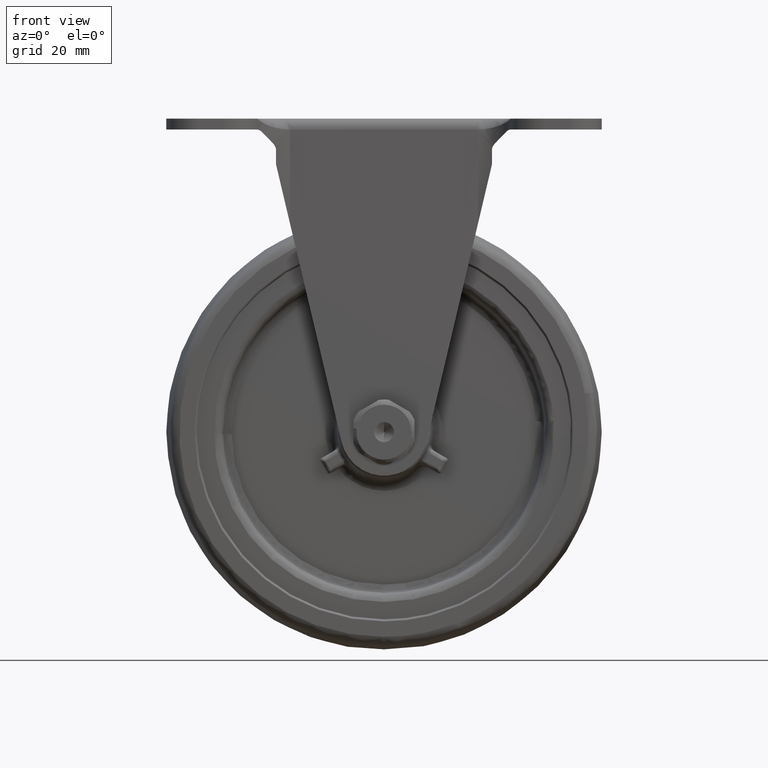
[diagram: clean part render]
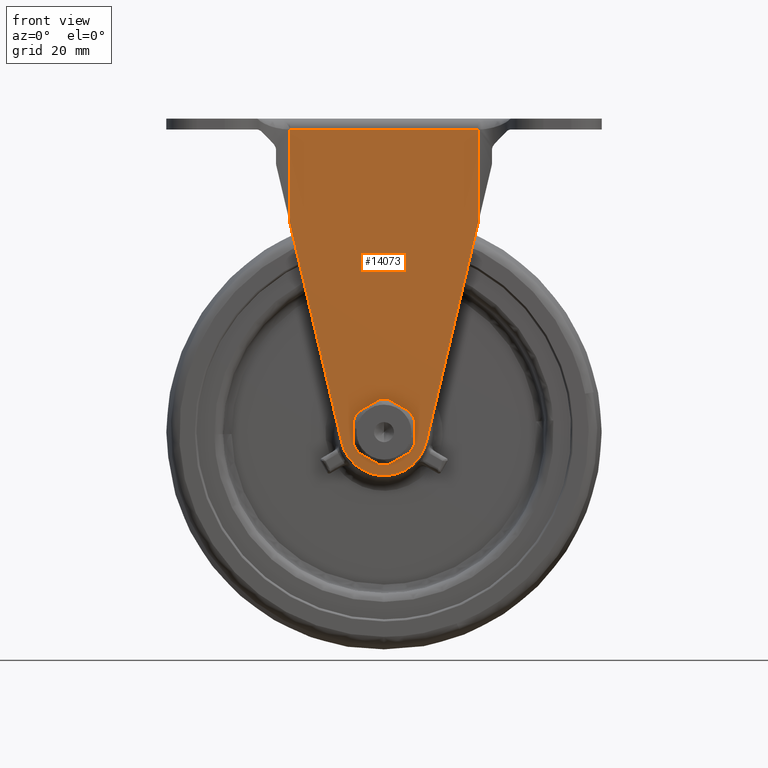
[diagram: same view with one face highlighted and labeled with its STEP entity id]
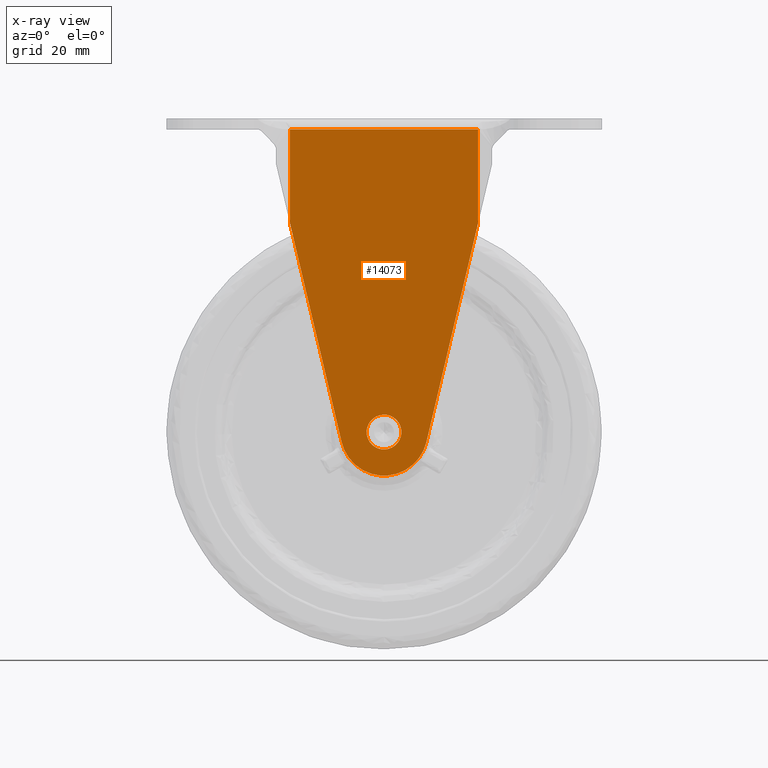
[diagram: x-ray of the same camera — body ghosted, the highlighted face saturated]
A machine part, front view. The second image highlights one B-rep face of the part: STEP entity #14073.
The next image is the same camera in x-ray: the body ghosted, the highlighted face saturated — about 0% of this face is hidden behind the body in this view.
In plain terms, the highlighted face is a freeform B-spline surface patch.
Its self-contained STEP definition (entity closure, byte-faithful):
#10452=CARTESIAN_POINT('',(3.972038105373621,-18.499980000000001,-0.472136939307879));
#10453=VERTEX_POINT('',#10452);
#10459=CARTESIAN_POINT('',(0.0,-18.499980000000001,3.999999999999885));
#10460=VERTEX_POINT('',#10459);
#10461=CARTESIAN_POINT('',(3.972038105373621,-18.499980000000004,-0.472136939307879));
#10462=CARTESIAN_POINT('',(3.999999999999884,-18.499979999999997,-0.236896479295690));
#10463=CARTESIAN_POINT('',(3.999999999999885,-18.499980000000001,0.0));
#10464=CARTESIAN_POINT('',(3.999999999999885,-18.499980000000004,3.999999999999885));
#10465=CARTESIAN_POINT('',(0.0,-18.499980000000001,3.999999999999885));
#10473=(BOUNDED_CURVE()B_SPLINE_CURVE(2,(#10461,#10462,#10463,#10464,#10465),.UNSPECIFIED.,.F.,.U.)B_SPLINE_CURVE_WITH_KNOTS((3,2,3),(0.229562473457706,0.250000000000000,0.500000000000000),.UNSPECIFIED.)CURVE()GEOMETRIC_REPRESENTATION_ITEM()RATIONAL_B_SPLINE_CURVE((0.956026754074324,0.976055948265768,1.0,0.707106781186548,1.0))REPRESENTATION_ITEM(''));
#10474=EDGE_CURVE('',#10453,#10460,#10473,.T.);
#10476=CARTESIAN_POINT('',(-3.992539193624949,-18.499980000000001,0.244194159159695));
#10477=VERTEX_POINT('',#10476);
#10478=CARTESIAN_POINT('',(0.0,-18.499980000000001,3.999999999999885));
#10479=CARTESIAN_POINT('',(-3.762824265695950,-18.499980000000008,3.999999999999885));
#10480=CARTESIAN_POINT('',(-3.992539193624950,-18.499980000000004,0.244194159159695));
#10488=(BOUNDED_CURVE()B_SPLINE_CURVE(2,(#10478,#10479,#10480),.UNSPECIFIED.,.F.,.U.)B_SPLINE_CURVE_WITH_KNOTS((3,3),(0.500000000000000,0.739332962153782),.UNSPECIFIED.)CURVE()GEOMETRIC_REPRESENTATION_ITEM()RATIONAL_B_SPLINE_CURVE((1.0,0.719603993386482,0.976072041484202))REPRESENTATION_ITEM(''));
#10489=EDGE_CURVE('',#10460,#10477,#10488,.T.);
#10563=CARTESIAN_POINT('',(0.0,-18.499980000000001,-3.999999999999885));
#10564=VERTEX_POINT('',#10563);
#10565=CARTESIAN_POINT('',(-3.992539193624949,-18.499980000000004,0.244194159159695));
#10566=CARTESIAN_POINT('',(-3.999999999999885,-18.499979999999994,0.122211054217487));
#10567=CARTESIAN_POINT('',(-3.999999999999885,-18.499980000000001,0.0));
#10568=CARTESIAN_POINT('',(-3.999999999999885,-18.499980000000004,-3.999999999999885));
#10569=CARTESIAN_POINT('',(0.0,-18.499980000000001,-3.999999999999885));
#10577=(BOUNDED_CURVE()B_SPLINE_CURVE(2,(#10565,#10566,#10567,#10568,#10569),.UNSPECIFIED.,.F.,.U.)B_SPLINE_CURVE_WITH_KNOTS((3,2,3),(0.739332962153781,0.750000000000000,1.0),.UNSPECIFIED.)CURVE()GEOMETRIC_REPRESENTATION_ITEM()RATIONAL_B_SPLINE_CURVE((0.976072041484200,0.987502787800064,1.0,0.707106781186548,1.0))REPRESENTATION_ITEM(''));
#10578=EDGE_CURVE('',#10477,#10564,#10577,.T.);
#10580=CARTESIAN_POINT('',(0.0,-18.499980000000001,-3.999999999999885));
#10581=CARTESIAN_POINT('',(3.552698102578839,-18.499979999999997,-3.999999999999884));
#10582=CARTESIAN_POINT('',(3.972038105373621,-18.499980000000004,-0.472136939307879));
#10590=(BOUNDED_CURVE()B_SPLINE_CURVE(2,(#10580,#10581,#10582),.UNSPECIFIED.,.F.,.U.)B_SPLINE_CURVE_WITH_KNOTS((3,3),(0.0,0.229562473457706),.UNSPECIFIED.)CURVE()GEOMETRIC_REPRESENTATION_ITEM()RATIONAL_B_SPLINE_CURVE((1.0,0.731050832920779,0.956026754074324))REPRESENTATION_ITEM(''));
#10591=EDGE_CURVE('',#10564,#10453,#10590,.T.);
#12121=CARTESIAN_POINT('',(-21.590020418879149,-18.499980000000001,69.500000000000000));
#12122=VERTEX_POINT('',#12121);
#12195=CARTESIAN_POINT('',(21.590029581120952,-18.499980000000001,69.500000000000000));
#12196=VERTEX_POINT('',#12195);
#12218=CARTESIAN_POINT('',(21.590029581120952,-18.499980000000001,69.500000000000000));
#12219=CARTESIAN_POINT('',(-21.590020418879149,-18.499980000000001,69.500000000000000));
#12220=QUASI_UNIFORM_CURVE('',1,(#12218,#12219),.UNSPECIFIED.,.F.,.U.);
#12221=EDGE_CURVE('',#12196,#12122,#12220,.T.);
#12932=CARTESIAN_POINT('',(9.732252464196970,-18.499980000000001,-2.298527566315305));
#12933=VERTEX_POINT('',#12932);
#12939=CARTESIAN_POINT('',(-9.732252464196970,-18.499980000000001,-2.298527566315295));
#12940=VERTEX_POINT('',#12939);
#12941=CARTESIAN_POINT('',(-9.732252464196971,-18.499980000000001,-2.298527566315294));
#12942=CARTESIAN_POINT('',(-7.913343065765032,-18.499979999999997,-9.999992821498067));
#12943=CARTESIAN_POINT('',(0.0,-18.499980000000001,-9.999992821498069));
#12944=CARTESIAN_POINT('',(7.913343065765020,-18.499979999999997,-9.999992821498067));
#12945=CARTESIAN_POINT('',(9.732252464196968,-18.499980000000001,-2.298527566315308));
#12953=(BOUNDED_CURVE()B_SPLINE_CURVE(2,(#12941,#12942,#12943,#12944,#12945),.UNSPECIFIED.,.F.,.U.)B_SPLINE_CURVE_WITH_KNOTS((3,2,3),(0.0,0.500000000000000,1.0),.UNSPECIFIED.)CURVE()GEOMETRIC_REPRESENTATION_ITEM()RATIONAL_B_SPLINE_CURVE((1.0,0.784172645047544,1.0,0.784172645047544,1.0))REPRESENTATION_ITEM(''));
#12954=EDGE_CURVE('',#12940,#12933,#12953,.T.);
#12969=CARTESIAN_POINT('',(-21.590020418879149,-18.499980000000001,47.908584445823003));
#12970=VERTEX_POINT('',#12969);
#12988=CARTESIAN_POINT('',(-21.590020418879149,-18.499980000000001,47.908584445823003));
#12989=CARTESIAN_POINT('',(-9.732252464196970,-18.499980000000001,-2.298527566315295));
#12990=QUASI_UNIFORM_CURVE('',1,(#12988,#12989),.UNSPECIFIED.,.F.,.U.);
#12991=EDGE_CURVE('',#12970,#12940,#12990,.T.);
#13511=CARTESIAN_POINT('',(-21.590020418879149,-18.499980000000001,47.908584445823003));
#13512=CARTESIAN_POINT('',(-21.590020418879149,-18.499980000000001,69.500000000000000));
#13513=QUASI_UNIFORM_CURVE('',1,(#13511,#13512),.UNSPECIFIED.,.F.,.U.);
#13514=EDGE_CURVE('',#12970,#12122,#13513,.T.);
#14003=CARTESIAN_POINT('',(21.590029581120952,-18.499980000000001,47.908623239776603));
#14004=VERTEX_POINT('',#14003);
#14042=CARTESIAN_POINT('',(21.590029581120952,-18.499980000000001,47.908623239776603));
#14043=CARTESIAN_POINT('',(21.590029581120952,-18.499980000000001,69.500000000000000));
#14044=QUASI_UNIFORM_CURVE('',1,(#14042,#14043),.UNSPECIFIED.,.F.,.U.);
#14045=EDGE_CURVE('',#14004,#12196,#14044,.T.);
#14050=CARTESIAN_POINT('',(-23.746864489105199,-18.499980000000001,73.471024487347393));
#14051=CARTESIAN_POINT('',(-23.746864489105199,-18.499980000000001,-13.971019441201120));
#14052=CARTESIAN_POINT('',(23.746870948928880,-18.499980000000001,73.471024487347393));
#14053=CARTESIAN_POINT('',(23.746870948928880,-18.499980000000001,-13.971019441201120));
#14054=B_SPLINE_SURFACE_WITH_KNOTS('',1,1,((#14050,#14052),(#14051,#14053)),.UNSPECIFIED.,.F.,.F.,.U.,(2,2),(2,2),(0.0,87.442043928548514),(0.0,47.493735438034079),.UNSPECIFIED.);
#14055=ORIENTED_EDGE('',*,*,#14045,.T.);
#14056=ORIENTED_EDGE('',*,*,#12221,.T.);
#14057=ORIENTED_EDGE('',*,*,#13514,.F.);
#14058=ORIENTED_EDGE('',*,*,#12991,.T.);
#14059=ORIENTED_EDGE('',*,*,#12954,.T.);
#14060=CARTESIAN_POINT('',(9.732252464196970,-18.499980000000001,-2.298527566315305));
#14061=CARTESIAN_POINT('',(21.590029581120952,-18.499980000000001,47.908623239776603));
#14062=QUASI_UNIFORM_CURVE('',1,(#14060,#14061),.UNSPECIFIED.,.F.,.U.);
#14063=EDGE_CURVE('',#12933,#14004,#14062,.T.);
#14064=ORIENTED_EDGE('',*,*,#14063,.T.);
#14065=EDGE_LOOP('',(#14055,#14056,#14057,#14058,#14059,#14064));
#14066=FACE_OUTER_BOUND('',#14065,.T.);
#14067=ORIENTED_EDGE('',*,*,#10489,.F.);
#14068=ORIENTED_EDGE('',*,*,#10474,.F.);
#14069=ORIENTED_EDGE('',*,*,#10591,.F.);
#14070=ORIENTED_EDGE('',*,*,#10578,.F.);
#14071=EDGE_LOOP('',(#14067,#14068,#14069,#14070));
#14072=FACE_BOUND('',#14071,.T.);
#14073=ADVANCED_FACE('',(#14066,#14072),#14054,.T.);